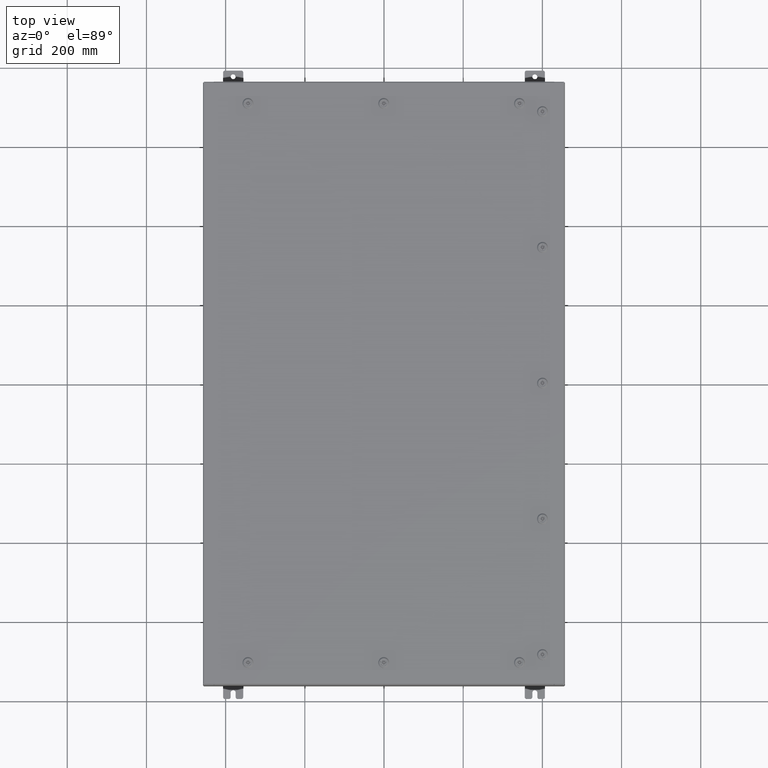
[diagram: clean part render]
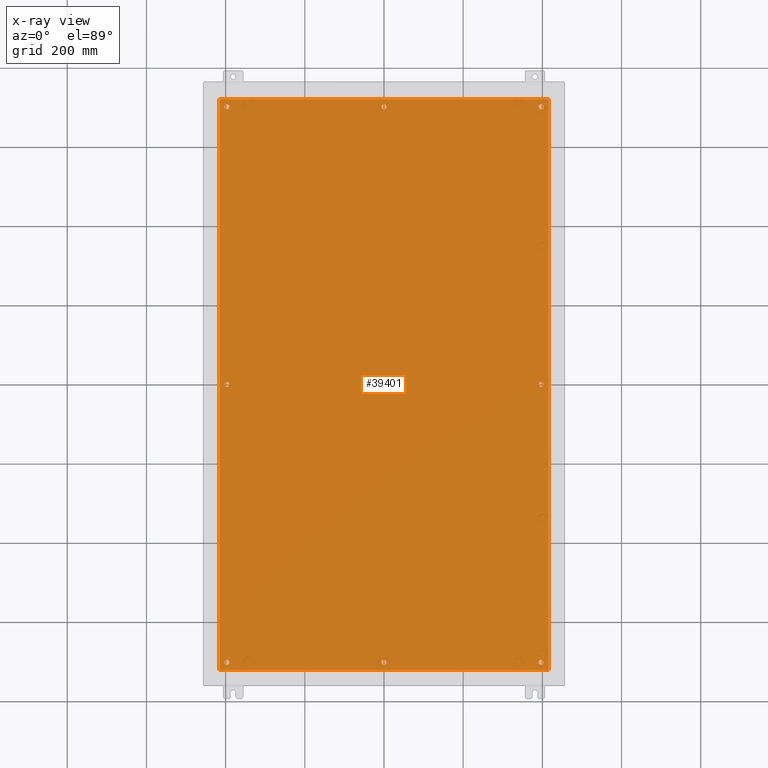
[diagram: x-ray — body ghosted, one internal face saturated and labeled with its STEP entity id]
A machine part, top view, then the same camera in x-ray: the body is ghosted and one INTERNAL B-rep face — a face not visible from any outside direction — is saturated and labeled: STEP entity #39401.
In plain terms, the highlighted planar face has unit normal (0, 0, -1).
Its self-contained STEP definition (entity closure, byte-faithful):
#223 = CIRCLE ( 'NONE', #20256, 0.2500000000000008900 ) ;
#682 = DIRECTION ( 'NONE',  ( -1.000000000000000000, 0.0000000000000000000, -0.0000000000000000000 ) ) ;
#794 = CARTESIAN_POINT ( 'NONE',  ( -16.38299999999999900, 28.38299999999998800, -0.1040000000000009100 ) ) ;
#845 = EDGE_LOOP ( 'NONE', ( #28828, #59549 ) ) ;
#924 = VERTEX_POINT ( 'NONE', #46821 ) ;
#1040 = DIRECTION ( 'NONE',  ( -1.000000000000000000, 0.0000000000000000000, 0.0000000000000000000 ) ) ;
#1492 = DIRECTION ( 'NONE',  ( -1.000000000000000000, 0.0000000000000000000, 0.0000000000000000000 ) ) ;
#2023 = DIRECTION ( 'NONE',  ( -1.000000000000000000, 0.0000000000000000000, 0.0000000000000000000 ) ) ;
#2769 = DIRECTION ( 'NONE',  ( -1.000000000000000000, 0.0000000000000000000, 0.0000000000000000000 ) ) ;
#2856 = EDGE_CURVE ( 'NONE', #5154, #37507, #38759, .T. ) ;
#3261 = DIRECTION ( 'NONE',  ( -1.000000000000000000, 0.0000000000000000000, 0.0000000000000000000 ) ) ;
#3463 = ORIENTED_EDGE ( 'NONE', *, *, #20471, .T. ) ;
#3917 = VERTEX_POINT ( 'NONE', #11884 ) ;
#4381 = CARTESIAN_POINT ( 'NONE',  ( 15.62500000000000900, -27.62500000000000000, -0.1039999999999999800 ) ) ;
#4964 = DIRECTION ( 'NONE',  ( 0.0000000000000000000, -1.000000000000000000, 0.0000000000000000000 ) ) ;
#5154 = VERTEX_POINT ( 'NONE', #39008 ) ;
#5751 = CIRCLE ( 'NONE', #68035, 0.2499999999999987000 ) ;
#6091 = VERTEX_POINT ( 'NONE', #794 ) ;
#6284 = LINE ( 'NONE', #51780, #18907 ) ;
#7109 = EDGE_CURVE ( 'NONE', #67521, #29807, #54471, .T. ) ;
#7368 = VERTEX_POINT ( 'NONE', #14710 ) ;
#7986 = AXIS2_PLACEMENT_3D ( 'NONE', #61627, #29564, #66981 ) ;
#8562 = CARTESIAN_POINT ( 'NONE',  ( 15.87500000000000700, 27.62500000000000000, -0.1039999999999999800 ) ) ;
#8787 = EDGE_CURVE ( 'NONE', #34033, #5154, #41851, .T. ) ;
#8825 = FACE_BOUND ( 'NONE', #30479, .T. ) ;
#9603 = ORIENTED_EDGE ( 'NONE', *, *, #8787, .F. ) ;
#9807 = DIRECTION ( 'NONE',  ( -1.000000000000000000, 0.0000000000000000000, 0.0000000000000000000 ) ) ;
#9883 = ORIENTED_EDGE ( 'NONE', *, *, #11675, .T. ) ;
#10544 = FACE_BOUND ( 'NONE', #845, .T. ) ;
#11088 = ORIENTED_EDGE ( 'NONE', *, *, #34917, .T. ) ;
#11348 = CARTESIAN_POINT ( 'NONE',  ( -15.37500000000000900, 27.62500000000000000, -0.1039999999999999800 ) ) ;
#11675 = EDGE_CURVE ( 'NONE', #7368, #66384, #66032, .T. ) ;
#11884 = CARTESIAN_POINT ( 'NONE',  ( 15.87500000000000700, -27.62500000000000000, -0.1039999999999999800 ) ) ;
#12601 = AXIS2_PLACEMENT_3D ( 'NONE', #4381, #41792, #9807 ) ;
#13887 = DIRECTION ( 'NONE',  ( 1.000000000000000000, -0.0000000000000000000, -0.0000000000000000000 ) ) ;
#14119 = CARTESIAN_POINT ( 'NONE',  ( 0.0000000000000000000, -27.62500000000000000, -0.1039999999999999800 ) ) ;
#14640 = EDGE_CURVE ( 'NONE', #34342, #42885, #58366, .T. ) ;
#14710 = CARTESIAN_POINT ( 'NONE',  ( 15.37500000000000500, 3.027752532102206500E-015, -0.1039999999999999800 ) ) ;
#14926 = AXIS2_PLACEMENT_3D ( 'NONE', #64722, #32658, #682 ) ;
#15025 = VERTEX_POINT ( 'NONE', #30491 ) ;
#15175 = EDGE_CURVE ( 'NONE', #924, #26672, #27337, .T. ) ;
#15400 = CARTESIAN_POINT ( 'NONE',  ( 15.87500000000000700, 2.997136362123522700E-015, -0.1039999999999999800 ) ) ;
#15822 = EDGE_CURVE ( 'NONE', #61871, #61352, #62476, .T. ) ;
#16241 = CARTESIAN_POINT ( 'NONE',  ( 15.62500000000000900, 27.62500000000000000, -0.1039999999999999800 ) ) ;
#16839 = DIRECTION ( 'NONE',  ( -0.0000000000000000000, -0.0000000000000000000, 1.000000000000000000 ) ) ;
#17129 = CARTESIAN_POINT ( 'NONE',  ( -15.87500000000000700, -27.62500000000000000, -0.1039999999999999800 ) ) ;
#17833 = AXIS2_PLACEMENT_3D ( 'NONE', #27613, #65027, #32958 ) ;
#18255 = AXIS2_PLACEMENT_3D ( 'NONE', #48807, #16839, #54223 ) ;
#18437 = ORIENTED_EDGE ( 'NONE', *, *, #7109, .T. ) ;
#18907 = VECTOR ( 'NONE', #36103, 39.37007874015748100 ) ;
#19104 = ORIENTED_EDGE ( 'NONE', *, *, #50499, .T. ) ;
#19471 = DIRECTION ( 'NONE',  ( -1.000000000000000000, 0.0000000000000000000, 0.0000000000000000000 ) ) ;
#19638 = VERTEX_POINT ( 'NONE', #31653 ) ;
#19820 = AXIS2_PLACEMENT_3D ( 'NONE', #28176, #65580, #33502 ) ;
#20256 = AXIS2_PLACEMENT_3D ( 'NONE', #65519, #33445, #1492 ) ;
#20306 = CIRCLE ( 'NONE', #7986, 0.2499999999999987000 ) ;
#20471 = EDGE_CURVE ( 'NONE', #68086, #19638, #58050, .T. ) ;
#21634 = DIRECTION ( 'NONE',  ( -1.000000000000000000, 0.0000000000000000000, 0.0000000000000000000 ) ) ;
#21664 = CARTESIAN_POINT ( 'NONE',  ( 15.37500000000000900, -27.62500000000000000, -0.1039999999999999800 ) ) ;
#22291 = CARTESIAN_POINT ( 'NONE',  ( -0.2500000000000011700, -27.62500000000000000, -0.1039999999999999800 ) ) ;
#22732 = ORIENTED_EDGE ( 'NONE', *, *, #62671, .F. ) ;
#23036 = FACE_BOUND ( 'NONE', #66431, .T. ) ;
#23177 = ORIENTED_EDGE ( 'NONE', *, *, #47061, .F. ) ;
#23259 = CARTESIAN_POINT ( 'NONE',  ( -15.62500000000001100, 27.62500000000000000, -0.1039999999999999800 ) ) ;
#23300 = CIRCLE ( 'NONE', #58895, 0.2499999999999987000 ) ;
#24741 = EDGE_LOOP ( 'NONE', ( #41936, #68980 ) ) ;
#25182 = DIRECTION ( 'NONE',  ( -0.0000000000000000000, -0.0000000000000000000, 1.000000000000000000 ) ) ;
#26098 = DIRECTION ( 'NONE',  ( -0.0000000000000000000, -0.0000000000000000000, 1.000000000000000000 ) ) ;
#26672 = VERTEX_POINT ( 'NONE', #8562 ) ;
#27337 = CIRCLE ( 'NONE', #45558, 0.2499999999999987000 ) ;
#27613 = CARTESIAN_POINT ( 'NONE',  ( -15.62500000000000500, -8.298848852119578500E-016, -0.1039999999999999800 ) ) ;
#28176 = CARTESIAN_POINT ( 'NONE',  ( -15.62500000000001100, 27.62500000000000000, -0.1039999999999999800 ) ) ;
#28594 = DIRECTION ( 'NONE',  ( -1.000000000000000000, 0.0000000000000000000, 0.0000000000000000000 ) ) ;
#28828 = ORIENTED_EDGE ( 'NONE', *, *, #14640, .T. ) ;
#28870 = AXIS2_PLACEMENT_3D ( 'NONE', #57203, #25182, #62599 ) ;
#29372 = AXIS2_PLACEMENT_3D ( 'NONE', #23259, #60672, #28594 ) ;
#29564 = DIRECTION ( 'NONE',  ( -0.0000000000000000000, -0.0000000000000000000, 1.000000000000000000 ) ) ;
#29717 = CARTESIAN_POINT ( 'NONE',  ( 16.38299999999999900, 28.38299999999998800, -0.1040000000000009100 ) ) ;
#29807 = VERTEX_POINT ( 'NONE', #38545 ) ;
#30479 = EDGE_LOOP ( 'NONE', ( #51964, #37020 ) ) ;
#30491 = CARTESIAN_POINT ( 'NONE',  ( -15.37500000000000900, -27.62500000000000000, -0.1039999999999999800 ) ) ;
#30995 = CARTESIAN_POINT ( 'NONE',  ( 15.62500000000000500, 2.997136362123522700E-015, -0.1039999999999999800 ) ) ;
#31263 = CARTESIAN_POINT ( 'NONE',  ( 0.2500000000000011700, -27.62500000000000000, -0.1039999999999999800 ) ) ;
#31283 = ORIENTED_EDGE ( 'NONE', *, *, #15822, .T. ) ;
#31653 = CARTESIAN_POINT ( 'NONE',  ( -15.87500000000001100, 27.62500000000000000, -0.1039999999999999800 ) ) ;
#32658 = DIRECTION ( 'NONE',  ( 0.0000000000000000000, 0.0000000000000000000, -1.000000000000000000 ) ) ;
#32958 = DIRECTION ( 'NONE',  ( -1.000000000000000000, 0.0000000000000000000, 0.0000000000000000000 ) ) ;
#33022 = DIRECTION ( 'NONE',  ( -0.0000000000000000000, -0.0000000000000000000, 1.000000000000000000 ) ) ;
#33158 = EDGE_LOOP ( 'NONE', ( #18437, #44207 ) ) ;
#33445 = DIRECTION ( 'NONE',  ( -0.0000000000000000000, -0.0000000000000000000, 1.000000000000000000 ) ) ;
#33502 = DIRECTION ( 'NONE',  ( -1.000000000000000000, 0.0000000000000000000, 0.0000000000000000000 ) ) ;
#34005 = DIRECTION ( 'NONE',  ( -0.0000000000000000000, -0.0000000000000000000, 1.000000000000000000 ) ) ;
#34033 = VERTEX_POINT ( 'NONE', #40007 ) ;
#34342 = VERTEX_POINT ( 'NONE', #31263 ) ;
#34774 = DIRECTION ( 'NONE',  ( -0.0000000000000000000, -0.0000000000000000000, 1.000000000000000000 ) ) ;
#34917 = EDGE_CURVE ( 'NONE', #66384, #7368, #62698, .T. ) ;
#35008 = EDGE_CURVE ( 'NONE', #26672, #924, #5751, .T. ) ;
#35255 = DIRECTION ( 'NONE',  ( -0.0000000000000000000, -0.0000000000000000000, 1.000000000000000000 ) ) ;
#35317 = EDGE_CURVE ( 'NONE', #47372, #15025, #63496, .T. ) ;
#35551 = FACE_OUTER_BOUND ( 'NONE', #50011, .T. ) ;
#35756 = EDGE_LOOP ( 'NONE', ( #3463, #42622 ) ) ;
#35967 = ORIENTED_EDGE ( 'NONE', *, *, #35317, .T. ) ;
#36103 = DIRECTION ( 'NONE',  ( -1.000000000000000000, -0.0000000000000000000, -0.0000000000000000000 ) ) ;
#36374 = DIRECTION ( 'NONE',  ( -1.000000000000000000, 0.0000000000000000000, 0.0000000000000000000 ) ) ;
#37020 = ORIENTED_EDGE ( 'NONE', *, *, #43757, .T. ) ;
#37239 = FACE_BOUND ( 'NONE', #46964, .T. ) ;
#37507 = VERTEX_POINT ( 'NONE', #29717 ) ;
#38376 = AXIS2_PLACEMENT_3D ( 'NONE', #14119, #51461, #19471 ) ;
#38452 = AXIS2_PLACEMENT_3D ( 'NONE', #65093, #33022, #1040 ) ;
#38545 = CARTESIAN_POINT ( 'NONE',  ( -0.2499999999999998600, 27.62500000000000000, -0.1039999999999999800 ) ) ;
#38759 = LINE ( 'NONE', #65345, #63896 ) ;
#39008 = CARTESIAN_POINT ( 'NONE',  ( 16.38299999999999900, -28.38300000000000600, -0.1040000000000009100 ) ) ;
#39401 = ADVANCED_FACE ( 'NONE', ( #10544, #51466, #54811, #37239, #23036, #8825, #64016, #49740, #35551 ), #48349, .T. ) ;
#40007 = CARTESIAN_POINT ( 'NONE',  ( -16.38299999999999900, -28.38300000000000600, -0.1040000000000009400 ) ) ;
#41792 = DIRECTION ( 'NONE',  ( -0.0000000000000000000, -0.0000000000000000000, 1.000000000000000000 ) ) ;
#41851 = LINE ( 'NONE', #46231, #68619 ) ;
#41936 = ORIENTED_EDGE ( 'NONE', *, *, #35008, .T. ) ;
#42622 = ORIENTED_EDGE ( 'NONE', *, *, #59706, .T. ) ;
#42885 = VERTEX_POINT ( 'NONE', #22291 ) ;
#42892 = AXIS2_PLACEMENT_3D ( 'NONE', #30995, #68431, #36374 ) ;
#43757 = EDGE_CURVE ( 'NONE', #59420, #3917, #23300, .T. ) ;
#44066 = DIRECTION ( 'NONE',  ( 0.0000000000000000000, 1.000000000000000000, 0.0000000000000000000 ) ) ;
#44207 = ORIENTED_EDGE ( 'NONE', *, *, #51807, .T. ) ;
#44575 = CARTESIAN_POINT ( 'NONE',  ( 0.2499999999999998600, 27.62500000000000000, -0.1039999999999999800 ) ) ;
#44600 = ORIENTED_EDGE ( 'NONE', *, *, #2856, .F. ) ;
#45558 = AXIS2_PLACEMENT_3D ( 'NONE', #16241, #53622, #21634 ) ;
#46066 = CARTESIAN_POINT ( 'NONE',  ( -15.87500000000000700, -7.992687152332741600E-016, -0.1039999999999999800 ) ) ;
#46231 = CARTESIAN_POINT ( 'NONE',  ( -16.50000000000000000, -28.38300000000000600, -0.1040000000000009400 ) ) ;
#46821 = CARTESIAN_POINT ( 'NONE',  ( 15.37500000000000900, 27.62500000000000000, -0.1039999999999999800 ) ) ;
#46964 = EDGE_LOOP ( 'NONE', ( #31283, #19104 ) ) ;
#47061 = EDGE_CURVE ( 'NONE', #37507, #6091, #6284, .T. ) ;
#47372 = VERTEX_POINT ( 'NONE', #17129 ) ;
#48349 = PLANE ( 'NONE',  #14926 ) ;
#48410 = AXIS2_PLACEMENT_3D ( 'NONE', #67313, #35255, #3261 ) ;
#48807 = CARTESIAN_POINT ( 'NONE',  ( 0.0000000000000000000, -27.62500000000000000, -0.1039999999999999800 ) ) ;
#49740 = FACE_BOUND ( 'NONE', #35756, .T. ) ;
#50011 = EDGE_LOOP ( 'NONE', ( #9603, #22732, #23177, #44600 ) ) ;
#50499 = EDGE_CURVE ( 'NONE', #61352, #61871, #223, .T. ) ;
#51461 = DIRECTION ( 'NONE',  ( -0.0000000000000000000, -0.0000000000000000000, 1.000000000000000000 ) ) ;
#51466 = FACE_BOUND ( 'NONE', #33158, .T. ) ;
#51780 = CARTESIAN_POINT ( 'NONE',  ( 16.50000000000000000, 28.38299999999999600, -0.1040000000000009400 ) ) ;
#51807 = EDGE_CURVE ( 'NONE', #29807, #67521, #57868, .T. ) ;
#51964 = ORIENTED_EDGE ( 'NONE', *, *, #54176, .T. ) ;
#52267 = CIRCLE ( 'NONE', #29372, 0.2500000000000008900 ) ;
#53622 = DIRECTION ( 'NONE',  ( -0.0000000000000000000, -0.0000000000000000000, 1.000000000000000000 ) ) ;
#54176 = EDGE_CURVE ( 'NONE', #3917, #59420, #55155, .T. ) ;
#54223 = DIRECTION ( 'NONE',  ( -1.000000000000000000, 0.0000000000000000000, 0.0000000000000000000 ) ) ;
#54471 = CIRCLE ( 'NONE', #48410, 0.2499999999999998600 ) ;
#54811 = FACE_BOUND ( 'NONE', #59685, .T. ) ;
#55155 = CIRCLE ( 'NONE', #12601, 0.2499999999999987000 ) ;
#55732 = CARTESIAN_POINT ( 'NONE',  ( -15.37500000000000500, -8.298848852119578500E-016, -0.1039999999999999800 ) ) ;
#55903 = AXIS2_PLACEMENT_3D ( 'NONE', #66061, #34005, #2023 ) ;
#56189 = VECTOR ( 'NONE', #4964, 39.37007874015748100 ) ;
#57203 = CARTESIAN_POINT ( 'NONE',  ( 15.62500000000000500, 2.997136362123522700E-015, -0.1039999999999999800 ) ) ;
#57868 = CIRCLE ( 'NONE', #38452, 0.2499999999999998600 ) ;
#57913 = LINE ( 'NONE', #69030, #56189 ) ;
#58050 = CIRCLE ( 'NONE', #19820, 0.2500000000000008900 ) ;
#58132 = CARTESIAN_POINT ( 'NONE',  ( 15.62500000000000900, 27.62500000000000000, -0.1039999999999999800 ) ) ;
#58366 = CIRCLE ( 'NONE', #18255, 0.2500000000000011700 ) ;
#58824 = CIRCLE ( 'NONE', #38376, 0.2500000000000011700 ) ;
#58895 = AXIS2_PLACEMENT_3D ( 'NONE', #66827, #34774, #2769 ) ;
#59420 = VERTEX_POINT ( 'NONE', #21664 ) ;
#59549 = ORIENTED_EDGE ( 'NONE', *, *, #61295, .T. ) ;
#59685 = EDGE_LOOP ( 'NONE', ( #11088, #9883 ) ) ;
#59706 = EDGE_CURVE ( 'NONE', #19638, #68086, #52267, .T. ) ;
#60672 = DIRECTION ( 'NONE',  ( -0.0000000000000000000, -0.0000000000000000000, 1.000000000000000000 ) ) ;
#61295 = EDGE_CURVE ( 'NONE', #42885, #34342, #58824, .T. ) ;
#61352 = VERTEX_POINT ( 'NONE', #46066 ) ;
#61627 = CARTESIAN_POINT ( 'NONE',  ( -15.62500000000000900, -27.62500000000000000, -0.1039999999999999800 ) ) ;
#61871 = VERTEX_POINT ( 'NONE', #55732 ) ;
#62476 = CIRCLE ( 'NONE', #17833, 0.2500000000000008900 ) ;
#62522 = EDGE_CURVE ( 'NONE', #15025, #47372, #20306, .T. ) ;
#62599 = DIRECTION ( 'NONE',  ( -1.000000000000000000, 0.0000000000000000000, 0.0000000000000000000 ) ) ;
#62671 = EDGE_CURVE ( 'NONE', #6091, #34033, #57913, .T. ) ;
#62698 = CIRCLE ( 'NONE', #42892, 0.2500000000000008900 ) ;
#63496 = CIRCLE ( 'NONE', #55903, 0.2499999999999987000 ) ;
#63515 = DIRECTION ( 'NONE',  ( -1.000000000000000000, 0.0000000000000000000, 0.0000000000000000000 ) ) ;
#63896 = VECTOR ( 'NONE', #44066, 39.37007874015748100 ) ;
#64016 = FACE_BOUND ( 'NONE', #24741, .T. ) ;
#64722 = CARTESIAN_POINT ( 'NONE',  ( 0.0000000000000000000, 0.0000000000000000000, -0.1039999999999999800 ) ) ;
#64941 = ORIENTED_EDGE ( 'NONE', *, *, #62522, .T. ) ;
#65027 = DIRECTION ( 'NONE',  ( -0.0000000000000000000, -0.0000000000000000000, 1.000000000000000000 ) ) ;
#65093 = CARTESIAN_POINT ( 'NONE',  ( 0.0000000000000000000, 27.62500000000000000, -0.1039999999999999800 ) ) ;
#65345 = CARTESIAN_POINT ( 'NONE',  ( 16.38299999999999900, -28.38300000000000600, -0.1040000000000009100 ) ) ;
#65519 = CARTESIAN_POINT ( 'NONE',  ( -15.62500000000000500, -8.298848852119578500E-016, -0.1039999999999999800 ) ) ;
#65580 = DIRECTION ( 'NONE',  ( -0.0000000000000000000, -0.0000000000000000000, 1.000000000000000000 ) ) ;
#66032 = CIRCLE ( 'NONE', #28870, 0.2500000000000008900 ) ;
#66061 = CARTESIAN_POINT ( 'NONE',  ( -15.62500000000000900, -27.62500000000000000, -0.1039999999999999800 ) ) ;
#66384 = VERTEX_POINT ( 'NONE', #15400 ) ;
#66431 = EDGE_LOOP ( 'NONE', ( #64941, #35967 ) ) ;
#66827 = CARTESIAN_POINT ( 'NONE',  ( 15.62500000000000900, -27.62500000000000000, -0.1039999999999999800 ) ) ;
#66981 = DIRECTION ( 'NONE',  ( -1.000000000000000000, 0.0000000000000000000, 0.0000000000000000000 ) ) ;
#67313 = CARTESIAN_POINT ( 'NONE',  ( 0.0000000000000000000, 27.62500000000000000, -0.1039999999999999800 ) ) ;
#67521 = VERTEX_POINT ( 'NONE', #44575 ) ;
#68035 = AXIS2_PLACEMENT_3D ( 'NONE', #58132, #26098, #63515 ) ;
#68086 = VERTEX_POINT ( 'NONE', #11348 ) ;
#68431 = DIRECTION ( 'NONE',  ( -0.0000000000000000000, -0.0000000000000000000, 1.000000000000000000 ) ) ;
#68619 = VECTOR ( 'NONE', #13887, 39.37007874015748100 ) ;
#68980 = ORIENTED_EDGE ( 'NONE', *, *, #15175, .T. ) ;
#69030 = CARTESIAN_POINT ( 'NONE',  ( -16.38299999999999900, 28.38299999999998800, -0.1040000000000009100 ) ) ;